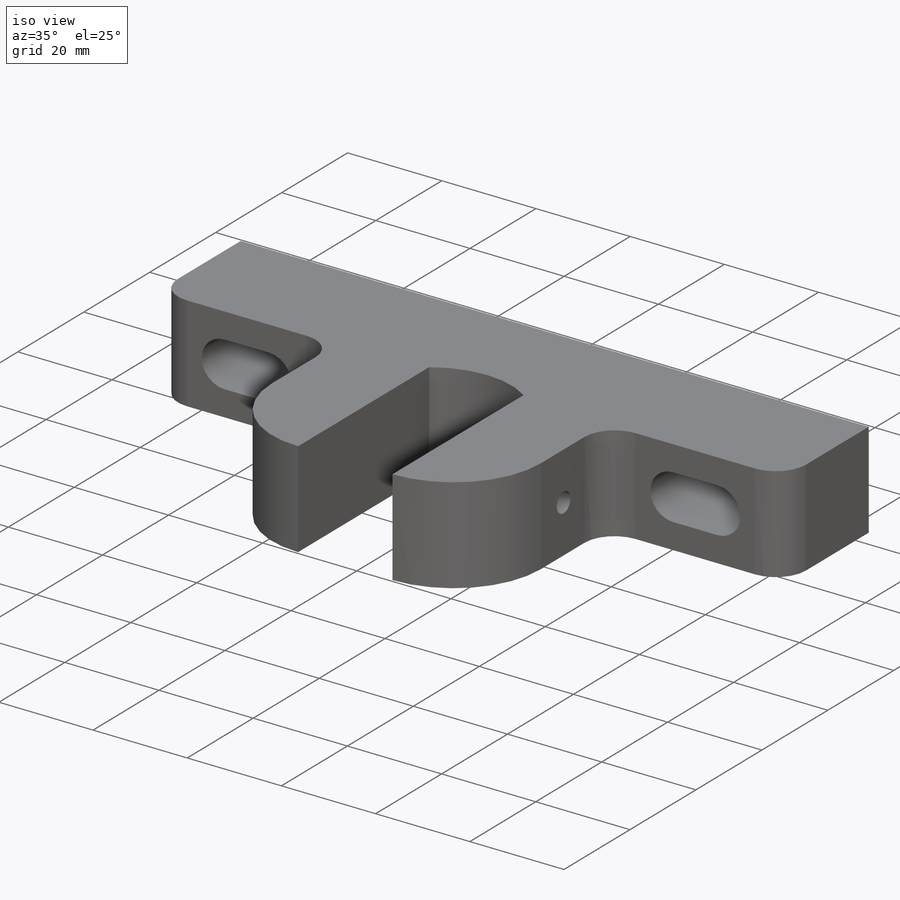
[diagram: iso view]
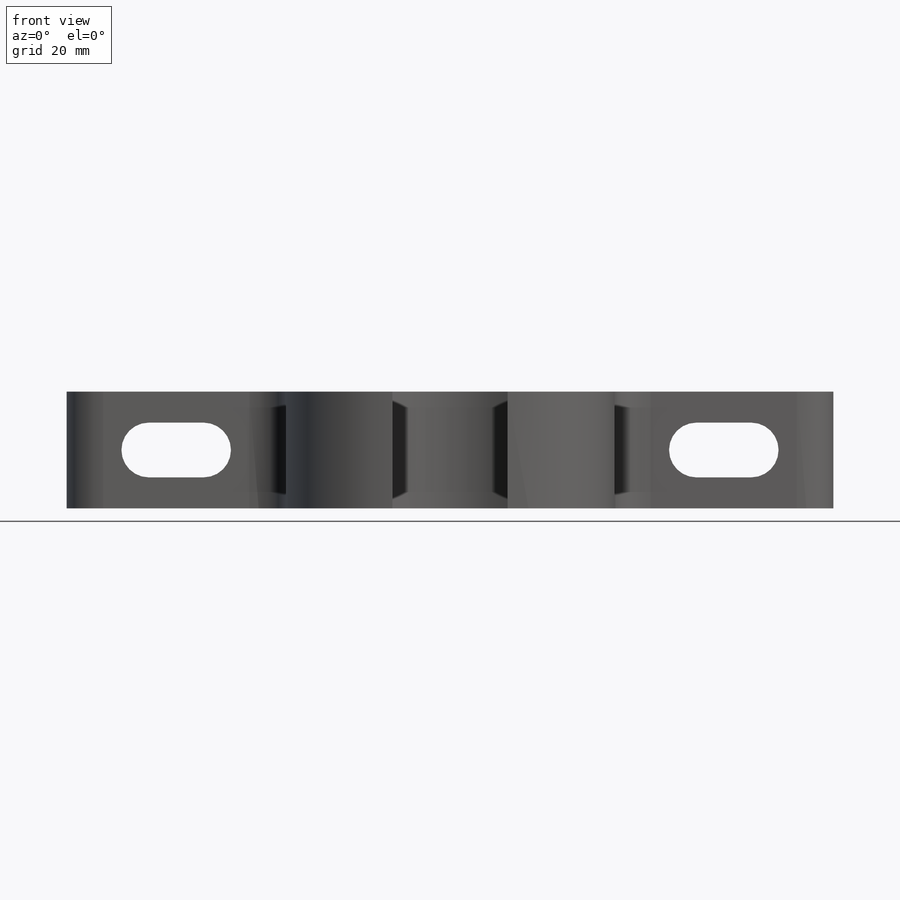
[diagram: front view]
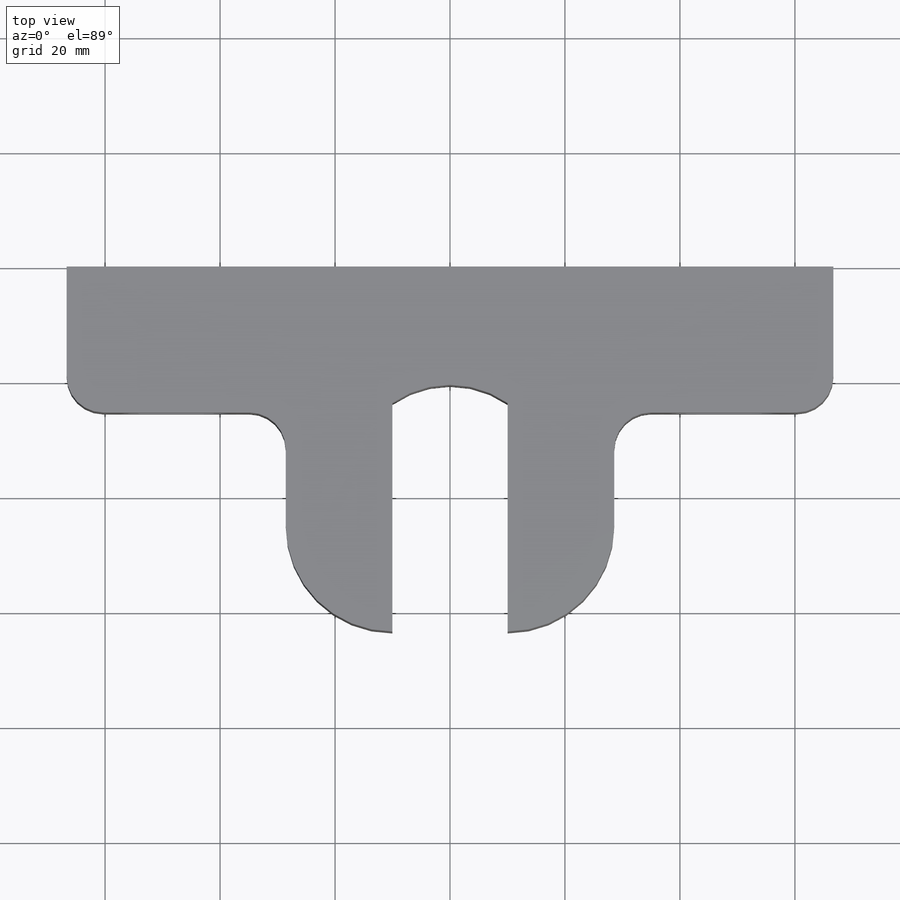
[diagram: top view]
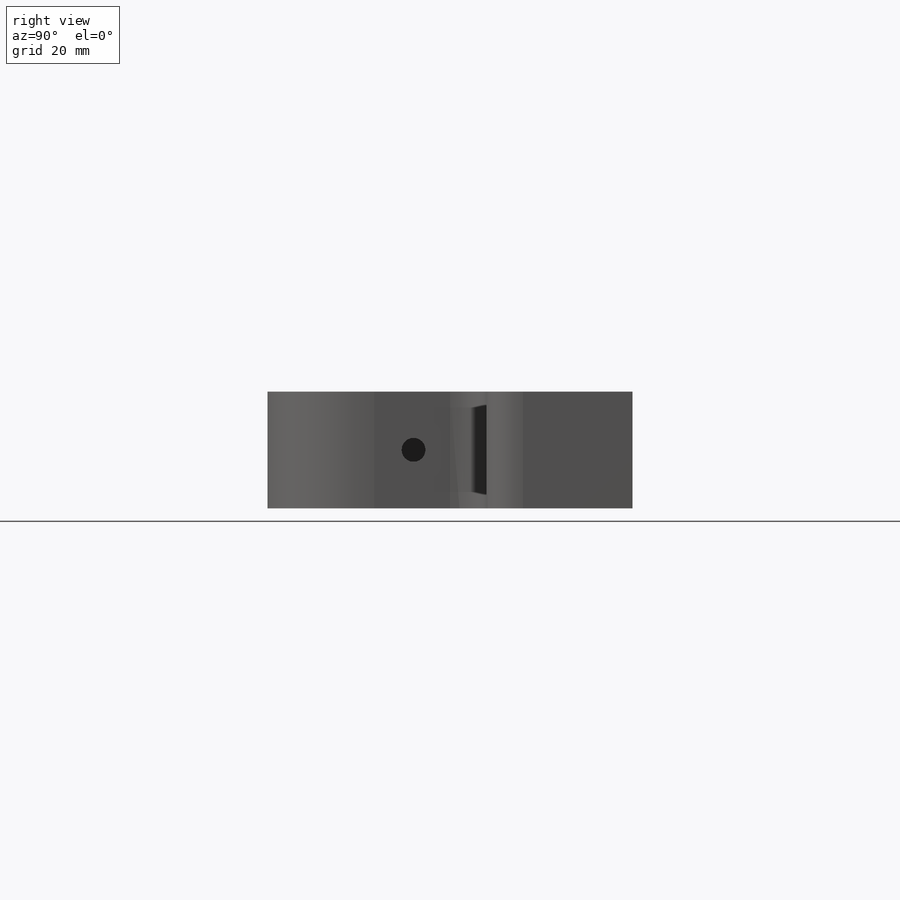
[diagram: right view]
SOLIDWORKS PART (.sldprt)
format: sldprt  version: not decoded by parser v0  size: 234,496 bytes
history: native  units: mm
features: sketch x4, cut_extrude x3, material x1, extrude x1, fillet x1 (+13 scaffold rows collapsed)
feature tree (23):
  scaffold x13  (default folders/planes/origin — collapsed)
  material  "6061 Alloy"
  sketch  "Sketch1"  dims[D3=9.525mm D1=20.32mm D2=133.35mm D4=~3.96875mm D5=95.25mm]
  extrude  "Extrude1"  Depth=63.5mm
  sketch  "Sketch2"  dims[c1.D1=35.0mm c1.D3=6.35mm c1.D4=17.5mm c2.D1=38.1mm c2.D2=25.4mm c3.D1=38.1mm]
  cut_extrude  "Cut-Extrude1"  [1 undecoded]
  fillet  "Fillet1"  Radius=6.35mm
  sketch  "Sketch3"
  cut_extrude  "Cut-Extrude2"  [1 undecoded]
  sketch  "Sketch6"  dims[D1=4.1529mm D2=38.1mm D3=124.63mm]
  cut_extrude  "Cut-Extrude5"  [1 undecoded]
decode coverage: 5 of 9 modeling features carry decoded parameters
note: ~ marks probable driven/reference dimensions
note: 3 parameter values undecoded
summary: no parameter record found for 3 features
note: suppression state not decoded; provenance and decode notes live in map.json
